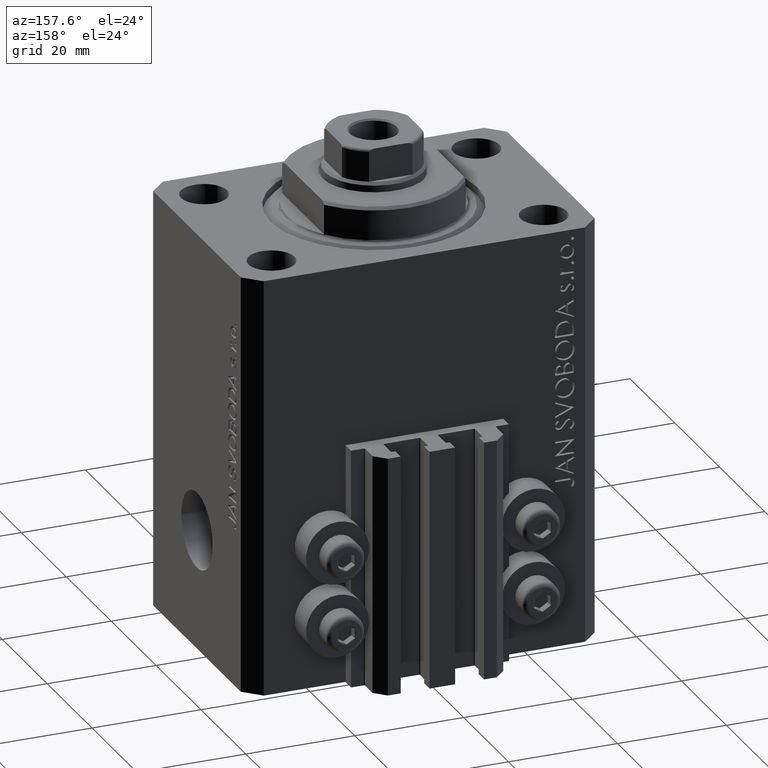
[diagram: clean part render]
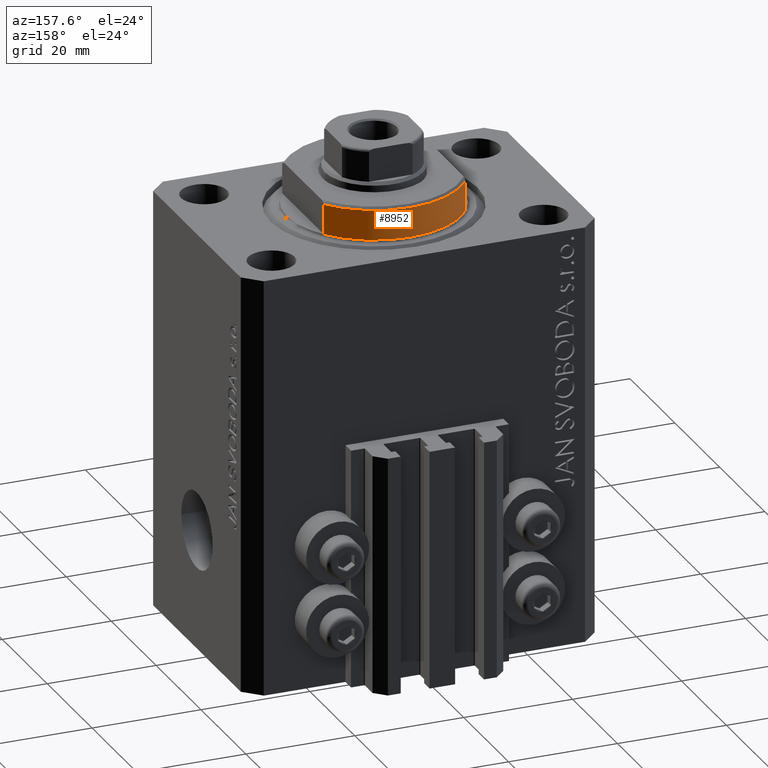
[diagram: same view with one face highlighted and labeled with its STEP entity id]
A machine part, auxiliary view. The second image highlights one B-rep face of the part: STEP entity #8952.
In plain terms, the highlighted cylindrical surface (partial cylindrical patch) has radius 16 mm, axis along (0, 0, -1).
Its self-contained STEP definition (entity closure, byte-faithful):
#3859 = EDGE_CURVE ( 'NONE', #31377, #31556, #32634, .T. ) ;
#5905 = CARTESIAN_POINT ( 'NONE',  ( -13.00000000000000000, 9.327379053088916905, -6.000000000000014211 ) ) ;
#6667 = EDGE_CURVE ( 'NONE', #31377, #43369, #8854, .T. ) ;
#6855 = DIRECTION ( 'NONE',  ( -0.000000000000000000, -0.000000000000000000, 1.000000000000000000 ) ) ;
#7161 = ORIENTED_EDGE ( 'NONE', *, *, #15675, .T. ) ;
#7863 = DIRECTION ( 'NONE',  ( -1.000000000000000000, 0.000000000000000000, 0.000000000000000000 ) ) ;
#8383 = CARTESIAN_POINT ( 'NONE',  ( 13.00000000000000000, 9.327379053088815652, -0.4999999999999995559 ) ) ;
#8854 = LINE ( 'NONE', #31588, #24319 ) ;
#8916 = CARTESIAN_POINT ( 'NONE',  ( 0.000000000000000000, 0.000000000000000000, -0.4999999999999995559 ) ) ;
#8952 = ADVANCED_FACE ( 'NONE', ( #19962 ), #35081, .T. ) ;
#9295 = ORIENTED_EDGE ( 'NONE', *, *, #6667, .F. ) ;
#11933 = CARTESIAN_POINT ( 'NONE',  ( 0.000000000000000000, 0.000000000000000000, -6.000000000000023981 ) ) ;
#15675 = EDGE_CURVE ( 'NONE', #31556, #30618, #39516, .T. ) ;
#18248 = AXIS2_PLACEMENT_3D ( 'NONE', #38205, #41821, #45870 ) ;
#19962 = FACE_OUTER_BOUND ( 'NONE', #23582, .T. ) ;
#21041 = ORIENTED_EDGE ( 'NONE', *, *, #3859, .T. ) ;
#21687 = VECTOR ( 'NONE', #40405, 1000.000000000000000 ) ;
#23582 = EDGE_LOOP ( 'NONE', ( #9295, #21041, #7161, #32291 ) ) ;
#24319 = VECTOR ( 'NONE', #6855, 1000.000000000000000 ) ;
#25284 = CIRCLE ( 'NONE', #33695, 16.00000000000000000 ) ;
#25761 = CARTESIAN_POINT ( 'NONE',  ( -13.00000000000000000, 9.327379053088813876, -6.500000000000000000 ) ) ;
#26599 = DIRECTION ( 'NONE',  ( 0.000000000000000000, 0.000000000000000000, 1.000000000000000000 ) ) ;
#30618 = VERTEX_POINT ( 'NONE', #37911 ) ;
#31377 = VERTEX_POINT ( 'NONE', #35744 ) ;
#31556 = VERTEX_POINT ( 'NONE', #5905 ) ;
#31588 = CARTESIAN_POINT ( 'NONE',  ( 13.00000000000000000, 9.327379053088813876, -6.500000000000000000 ) ) ;
#32291 = ORIENTED_EDGE ( 'NONE', *, *, #41216, .T. ) ;
#32634 = CIRCLE ( 'NONE', #38769, 16.00000000000000000 ) ;
#33654 = DIRECTION ( 'NONE',  ( -0.000000000000000000, -0.000000000000000000, -1.000000000000000000 ) ) ;
#33695 = AXIS2_PLACEMENT_3D ( 'NONE', #8916, #33654, #44931 ) ;
#35081 = CYLINDRICAL_SURFACE ( 'NONE', #18248, 16.00000000000000000 ) ;
#35744 = CARTESIAN_POINT ( 'NONE',  ( 13.00000000000000000, 9.327379053088916905, -6.000000000000014211 ) ) ;
#37911 = CARTESIAN_POINT ( 'NONE',  ( -13.00000000000000000, 9.327379053088815652, -0.4999999999999995559 ) ) ;
#38205 = CARTESIAN_POINT ( 'NONE',  ( 0.000000000000000000, 0.000000000000000000, -6.500000000000000000 ) ) ;
#38769 = AXIS2_PLACEMENT_3D ( 'NONE', #11933, #26599, #7863 ) ;
#39516 = LINE ( 'NONE', #25761, #21687 ) ;
#40405 = DIRECTION ( 'NONE',  ( -0.000000000000000000, -0.000000000000000000, 1.000000000000000000 ) ) ;
#41216 = EDGE_CURVE ( 'NONE', #30618, #43369, #25284, .T. ) ;
#41821 = DIRECTION ( 'NONE',  ( -0.000000000000000000, -0.000000000000000000, 1.000000000000000000 ) ) ;
#43369 = VERTEX_POINT ( 'NONE', #8383 ) ;
#44931 = DIRECTION ( 'NONE',  ( 1.000000000000000000, -8.881784197001252323E-16, 0.000000000000000000 ) ) ;
#45870 = DIRECTION ( 'NONE',  ( 1.000000000000000000, 0.000000000000000000, 0.000000000000000000 ) ) ;